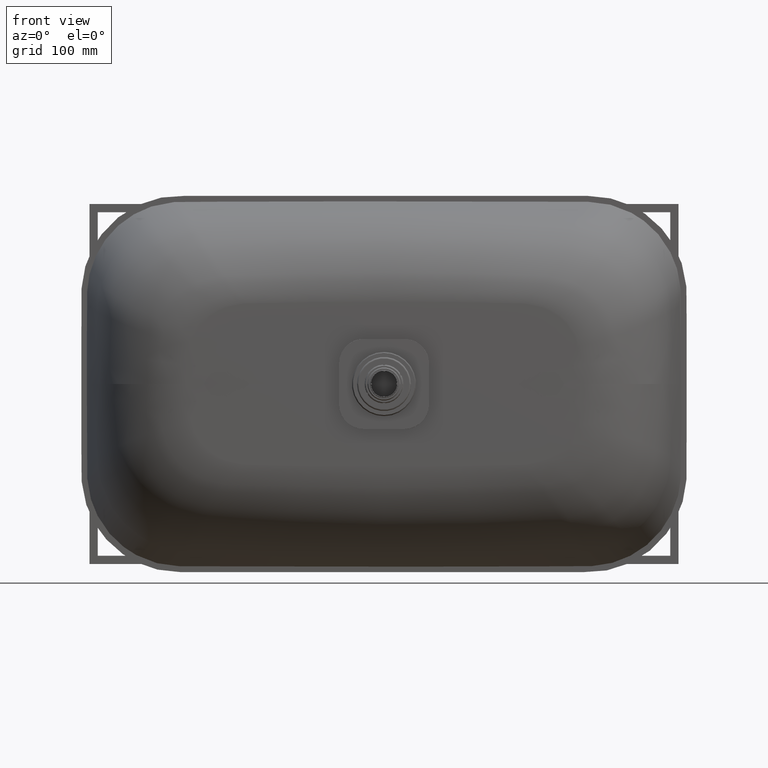
[diagram: clean part render]
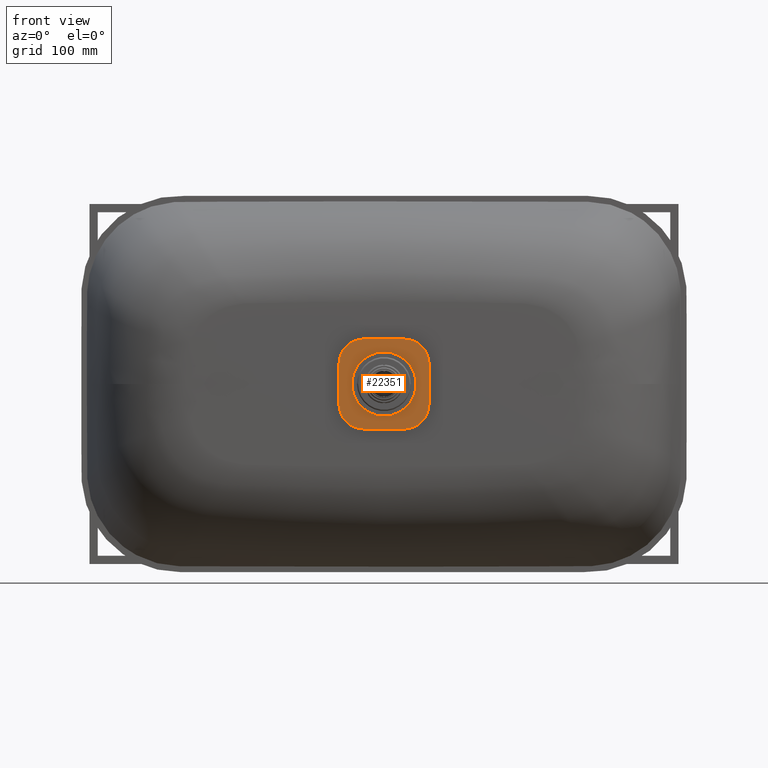
[diagram: same view with one face highlighted and labeled with its STEP entity id]
A machine part, front view. The second image highlights one B-rep face of the part: STEP entity #22351.
In plain terms, the highlighted planar face has unit normal (0, 1, 0).
Its self-contained STEP definition (entity closure, byte-faithful):
#359 = VECTOR ( 'NONE', #52780, 1000.000000000000000 ) ;
#526 = VECTOR ( 'NONE', #21397, 1000.000000000000000 ) ;
#753 = ORIENTED_EDGE ( 'NONE', *, *, #74123, .F. ) ;
#854 = ORIENTED_EDGE ( 'NONE', *, *, #51072, .F. ) ;
#1541 = LINE ( 'NONE', #27161, #359 ) ;
#1858 = DIRECTION ( 'NONE',  ( 0.0000000000000000000, 1.000000000000000000, 0.0000000000000000000 ) ) ;
#3519 = CARTESIAN_POINT ( 'NONE',  ( 25.00000000000000000, -165.0000000000000284, 24.99999999999998579 ) ) ;
#5497 = LINE ( 'NONE', #31122, #8816 ) ;
#5919 = DIRECTION ( 'NONE',  ( 0.0000000000000000000, 1.000000000000000000, 0.0000000000000000000 ) ) ;
#6877 = EDGE_CURVE ( 'NONE', #22293, #76703, #13157, .T. ) ;
#7842 = LINE ( 'NONE', #33458, #36576 ) ;
#8816 = VECTOR ( 'NONE', #56731, 1000.000000000000000 ) ;
#9104 = CIRCLE ( 'NONE', #56027, 30.00000000000000355 ) ;
#9517 = VERTEX_POINT ( 'NONE', #67886 ) ;
#9826 = FACE_BOUND ( 'NONE', #61180, .T. ) ;
#13040 = ORIENTED_EDGE ( 'NONE', *, *, #18472, .F. ) ;
#13157 = CIRCLE ( 'NONE', #70841, 39.21320343559651178 ) ;
#15178 = AXIS2_PLACEMENT_3D ( 'NONE', #48430, #74071, #16518 ) ;
#15776 = EDGE_LOOP ( 'NONE', ( #53402, #854, #753, #64027, #13040, #46207, #80627, #80219 ) ) ;
#15937 = VERTEX_POINT ( 'NONE', #18522 ) ;
#16149 = CARTESIAN_POINT ( 'NONE',  ( 25.00000000000000000, -165.0000000000000284, 24.99999999999998579 ) ) ;
#16518 = DIRECTION ( 'NONE',  ( 0.0000000000000000000, 0.0000000000000000000, 1.000000000000000000 ) ) ;
#17489 = DIRECTION ( 'NONE',  ( 0.0000000000000000000, 0.0000000000000000000, 1.000000000000000000 ) ) ;
#18144 = DIRECTION ( 'NONE',  ( 0.0000000000000000000, 0.0000000000000000000, 1.000000000000000000 ) ) ;
#18472 = EDGE_CURVE ( 'NONE', #56744, #9517, #9104, .T. ) ;
#18522 = CARTESIAN_POINT ( 'NONE',  ( -24.99999999999998579, -165.0000000000000284, 54.99999999999998579 ) ) ;
#18739 = VERTEX_POINT ( 'NONE', #24205 ) ;
#19414 = AXIS2_PLACEMENT_3D ( 'NONE', #63459, #5919, #31541 ) ;
#20164 = ORIENTED_EDGE ( 'NONE', *, *, #61981, .T. ) ;
#20989 = CARTESIAN_POINT ( 'NONE',  ( 24.99999999999999289, -165.0000000000000284, -55.00000000000000000 ) ) ;
#21397 = DIRECTION ( 'NONE',  ( -1.000000000000000000, 0.0000000000000000000, 1.387778780781445922E-16 ) ) ;
#22293 = VERTEX_POINT ( 'NONE', #73680 ) ;
#22351 = ADVANCED_FACE ( 'NONE', ( #9826, #35447 ), #61058, .F. ) ;
#23012 = CARTESIAN_POINT ( 'NONE',  ( 55.00000000000000000, -165.0000000000000284, -25.00000000000001066 ) ) ;
#24205 = CARTESIAN_POINT ( 'NONE',  ( 55.00000000000000000, -165.0000000000000284, 24.99999999999998934 ) ) ;
#27161 = CARTESIAN_POINT ( 'NONE',  ( 25.00000000000000000, -165.0000000000000284, 54.99999999999999289 ) ) ;
#27218 = CIRCLE ( 'NONE', #74171, 39.21320343559651178 ) ;
#27480 = DIRECTION ( 'NONE',  ( 0.0000000000000000000, 0.0000000000000000000, 1.000000000000000000 ) ) ;
#28455 = VERTEX_POINT ( 'NONE', #20989 ) ;
#29135 = DIRECTION ( 'NONE',  ( 0.0000000000000000000, 1.000000000000000000, 0.0000000000000000000 ) ) ;
#31122 = CARTESIAN_POINT ( 'NONE',  ( -54.99999999999999289, -165.0000000000000284, 25.00000000000000000 ) ) ;
#31541 = DIRECTION ( 'NONE',  ( 0.0000000000000000000, 0.0000000000000000000, 1.000000000000000000 ) ) ;
#31633 = EDGE_CURVE ( 'NONE', #46528, #18739, #70016, .T. ) ;
#32833 = ORIENTED_EDGE ( 'NONE', *, *, #6877, .T. ) ;
#33458 = CARTESIAN_POINT ( 'NONE',  ( 55.00000000000000000, -165.0000000000000284, 24.99999999999998934 ) ) ;
#33790 = AXIS2_PLACEMENT_3D ( 'NONE', #16149, #41765, #67394 ) ;
#35447 = FACE_OUTER_BOUND ( 'NONE', #15776, .T. ) ;
#36576 = VECTOR ( 'NONE', #59074, 1000.000000000000000 ) ;
#38561 = VERTEX_POINT ( 'NONE', #23012 ) ;
#41765 = DIRECTION ( 'NONE',  ( 0.0000000000000000000, 1.000000000000000000, 0.0000000000000000000 ) ) ;
#46207 = ORIENTED_EDGE ( 'NONE', *, *, #68243, .F. ) ;
#46415 = CARTESIAN_POINT ( 'NONE',  ( 0.0000000000000000000, -165.0000000000000284, 39.21320343559651889 ) ) ;
#46528 = VERTEX_POINT ( 'NONE', #56383 ) ;
#48430 = CARTESIAN_POINT ( 'NONE',  ( 25.00000000000000000, -165.0000000000000284, -25.00000000000000711 ) ) ;
#49404 = CARTESIAN_POINT ( 'NONE',  ( -24.99999999999998579, -165.0000000000000284, -24.99999999999999289 ) ) ;
#50061 = CARTESIAN_POINT ( 'NONE',  ( 0.0000000000000000000, -165.0000000000000284, 0.0000000000000000000 ) ) ;
#51057 = EDGE_CURVE ( 'NONE', #18739, #38561, #7842, .T. ) ;
#51072 = EDGE_CURVE ( 'NONE', #15937, #46528, #1541, .T. ) ;
#51373 = CIRCLE ( 'NONE', #15178, 30.00000000000000000 ) ;
#52780 = DIRECTION ( 'NONE',  ( 1.000000000000000000, -0.0000000000000000000, 1.387778780781445922E-16 ) ) ;
#53314 = LINE ( 'NONE', #78956, #526 ) ;
#53402 = ORIENTED_EDGE ( 'NONE', *, *, #31633, .F. ) ;
#54743 = DIRECTION ( 'NONE',  ( 0.0000000000000000000, -0.0000000000000000000, 1.000000000000000000 ) ) ;
#55624 = CIRCLE ( 'NONE', #19414, 29.99999999999999289 ) ;
#56027 = AXIS2_PLACEMENT_3D ( 'NONE', #49404, #75046, #17489 ) ;
#56383 = CARTESIAN_POINT ( 'NONE',  ( 25.00000000000000355, -165.0000000000000284, 54.99999999999999289 ) ) ;
#56731 = DIRECTION ( 'NONE',  ( -0.0000000000000000000, 0.0000000000000000000, 1.000000000000000000 ) ) ;
#56744 = VERTEX_POINT ( 'NONE', #60115 ) ;
#59074 = DIRECTION ( 'NONE',  ( 1.387778780781445922E-16, 0.0000000000000000000, -1.000000000000000000 ) ) ;
#59393 = CARTESIAN_POINT ( 'NONE',  ( 0.0000000000000000000, -165.0000000000000284, 0.0000000000000000000 ) ) ;
#60115 = CARTESIAN_POINT ( 'NONE',  ( -24.99999999999998579, -165.0000000000000284, -54.99999999999999289 ) ) ;
#61058 = PLANE ( 'NONE',  #68328 ) ;
#61180 = EDGE_LOOP ( 'NONE', ( #20164, #32833 ) ) ;
#61981 = EDGE_CURVE ( 'NONE', #76703, #22293, #27218, .T. ) ;
#62937 = EDGE_CURVE ( 'NONE', #38561, #28455, #51373, .T. ) ;
#63459 = CARTESIAN_POINT ( 'NONE',  ( -24.99999999999999289, -165.0000000000000284, 25.00000000000000000 ) ) ;
#64027 = ORIENTED_EDGE ( 'NONE', *, *, #80120, .F. ) ;
#67394 = DIRECTION ( 'NONE',  ( 0.0000000000000000000, 0.0000000000000000000, 1.000000000000000000 ) ) ;
#67886 = CARTESIAN_POINT ( 'NONE',  ( -54.99999999999999289, -165.0000000000000284, -24.99999999999999289 ) ) ;
#68243 = EDGE_CURVE ( 'NONE', #28455, #56744, #53314, .T. ) ;
#68328 = AXIS2_PLACEMENT_3D ( 'NONE', #3519, #29135, #54743 ) ;
#70016 = CIRCLE ( 'NONE', #33790, 30.00000000000000711 ) ;
#70841 = AXIS2_PLACEMENT_3D ( 'NONE', #50061, #75702, #18144 ) ;
#73680 = CARTESIAN_POINT ( 'NONE',  ( 4.802232407171726477E-15, -165.0000000000000284, -39.21320343559651889 ) ) ;
#74071 = DIRECTION ( 'NONE',  ( 0.0000000000000000000, 1.000000000000000000, 0.0000000000000000000 ) ) ;
#74123 = EDGE_CURVE ( 'NONE', #79503, #15937, #55624, .T. ) ;
#74171 = AXIS2_PLACEMENT_3D ( 'NONE', #59393, #1858, #27480 ) ;
#74826 = CARTESIAN_POINT ( 'NONE',  ( -54.99999999999998579, -165.0000000000000284, 25.00000000000000711 ) ) ;
#75046 = DIRECTION ( 'NONE',  ( 0.0000000000000000000, 1.000000000000000000, 0.0000000000000000000 ) ) ;
#75702 = DIRECTION ( 'NONE',  ( 0.0000000000000000000, 1.000000000000000000, 0.0000000000000000000 ) ) ;
#76703 = VERTEX_POINT ( 'NONE', #46415 ) ;
#78956 = CARTESIAN_POINT ( 'NONE',  ( 24.99999999999999289, -165.0000000000000284, -55.00000000000000000 ) ) ;
#79503 = VERTEX_POINT ( 'NONE', #74826 ) ;
#80120 = EDGE_CURVE ( 'NONE', #9517, #79503, #5497, .T. ) ;
#80219 = ORIENTED_EDGE ( 'NONE', *, *, #51057, .F. ) ;
#80627 = ORIENTED_EDGE ( 'NONE', *, *, #62937, .F. ) ;